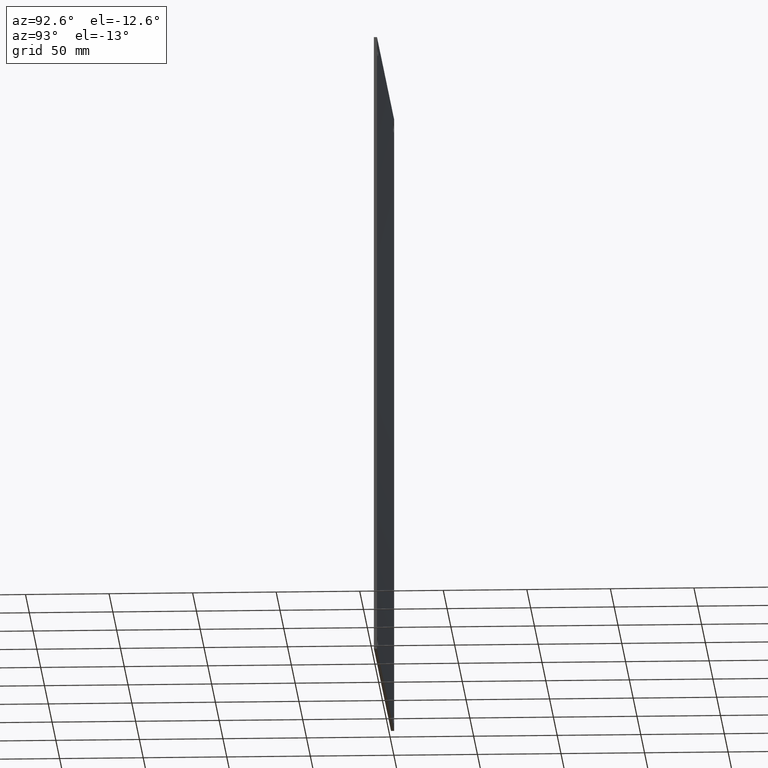
[diagram: clean part render]
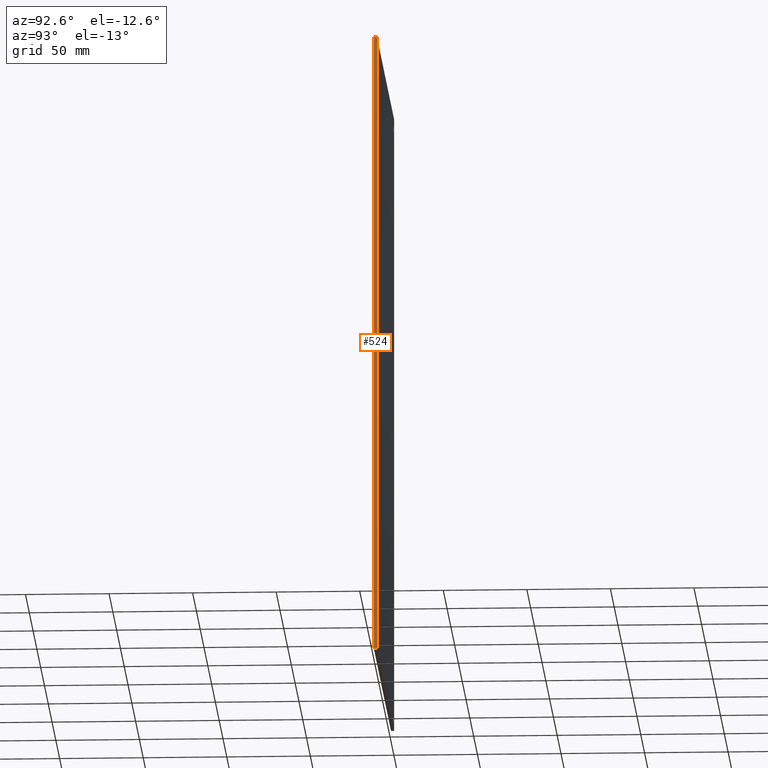
[diagram: same view with one face highlighted and labeled with its STEP entity id]
A machine part, auxiliary view. The second image highlights one B-rep face of the part: STEP entity #524.
In plain terms, the highlighted planar face has unit normal (1, 0, 0).
Its self-contained STEP definition (entity closure, byte-faithful):
#11 = VECTOR ( 'NONE', #415, 39.37007874015748143 ) ;
#16 = CARTESIAN_POINT ( 'NONE',  ( 4.437500000000000000, 0.07200000000000000844, 7.375000000000000000 ) ) ;
#22 = CARTESIAN_POINT ( 'NONE',  ( 4.437500000000000000, 0.07200000000000000844, -7.375000000000000000 ) ) ;
#41 = LINE ( 'NONE', #409, #51 ) ;
#43 = LINE ( 'NONE', #174, #326 ) ;
#51 = VECTOR ( 'NONE', #335, 39.37007874015748143 ) ;
#59 = DIRECTION ( 'NONE',  ( 1.000000000000000000, 0.0000000000000000000, 0.0000000000000000000 ) ) ;
#91 = FACE_OUTER_BOUND ( 'NONE', #407, .T. ) ;
#98 = CARTESIAN_POINT ( 'NONE',  ( 4.437500000000000000, 0.0000000000000000000, 7.375000000000000000 ) ) ;
#103 = DIRECTION ( 'NONE',  ( -0.0000000000000000000, 1.000000000000000000, 0.0000000000000000000 ) ) ;
#132 = EDGE_CURVE ( 'NONE', #275, #502, #514, .T. ) ;
#135 = CARTESIAN_POINT ( 'NONE',  ( 4.437500000000000000, 0.07200000000000000844, -7.375000000000000000 ) ) ;
#141 = PLANE ( 'NONE',  #458 ) ;
#163 = VECTOR ( 'NONE', #383, 39.37007874015748143 ) ;
#174 = CARTESIAN_POINT ( 'NONE',  ( 4.437500000000000000, 0.07200000000000000844, 7.375000000000000000 ) ) ;
#195 = LINE ( 'NONE', #489, #11 ) ;
#224 = EDGE_CURVE ( 'NONE', #450, #502, #43, .T. ) ;
#255 = CARTESIAN_POINT ( 'NONE',  ( 4.437500000000000000, 0.0000000000000000000, -7.375000000000000000 ) ) ;
#275 = VERTEX_POINT ( 'NONE', #483 ) ;
#326 = VECTOR ( 'NONE', #103, 39.37007874015748143 ) ;
#332 = ORIENTED_EDGE ( 'NONE', *, *, #224, .F. ) ;
#335 = DIRECTION ( 'NONE',  ( -0.0000000000000000000, 0.0000000000000000000, 1.000000000000000000 ) ) ;
#345 = DIRECTION ( 'NONE',  ( 0.0000000000000000000, 0.0000000000000000000, -1.000000000000000000 ) ) ;
#354 = ORIENTED_EDGE ( 'NONE', *, *, #132, .T. ) ;
#383 = DIRECTION ( 'NONE',  ( -0.0000000000000000000, -0.0000000000000000000, 1.000000000000000000 ) ) ;
#407 = EDGE_LOOP ( 'NONE', ( #354, #332, #523, #437 ) ) ;
#409 = CARTESIAN_POINT ( 'NONE',  ( 4.437500000000000000, 0.0000000000000000000, -7.375000000000000000 ) ) ;
#415 = DIRECTION ( 'NONE',  ( -0.0000000000000000000, 1.000000000000000000, 0.0000000000000000000 ) ) ;
#419 = VERTEX_POINT ( 'NONE', #255 ) ;
#425 = EDGE_CURVE ( 'NONE', #419, #450, #41, .T. ) ;
#437 = ORIENTED_EDGE ( 'NONE', *, *, #503, .T. ) ;
#450 = VERTEX_POINT ( 'NONE', #98 ) ;
#458 = AXIS2_PLACEMENT_3D ( 'NONE', #22, #59, #345 ) ;
#483 = CARTESIAN_POINT ( 'NONE',  ( 4.437500000000000000, 0.07200000000000000844, -7.375000000000000000 ) ) ;
#489 = CARTESIAN_POINT ( 'NONE',  ( 4.437500000000000000, 0.07200000000000000844, -7.375000000000000000 ) ) ;
#502 = VERTEX_POINT ( 'NONE', #16 ) ;
#503 = EDGE_CURVE ( 'NONE', #419, #275, #195, .T. ) ;
#514 = LINE ( 'NONE', #135, #163 ) ;
#523 = ORIENTED_EDGE ( 'NONE', *, *, #425, .F. ) ;
#524 = ADVANCED_FACE ( 'NONE', ( #91 ), #141, .T. ) ;